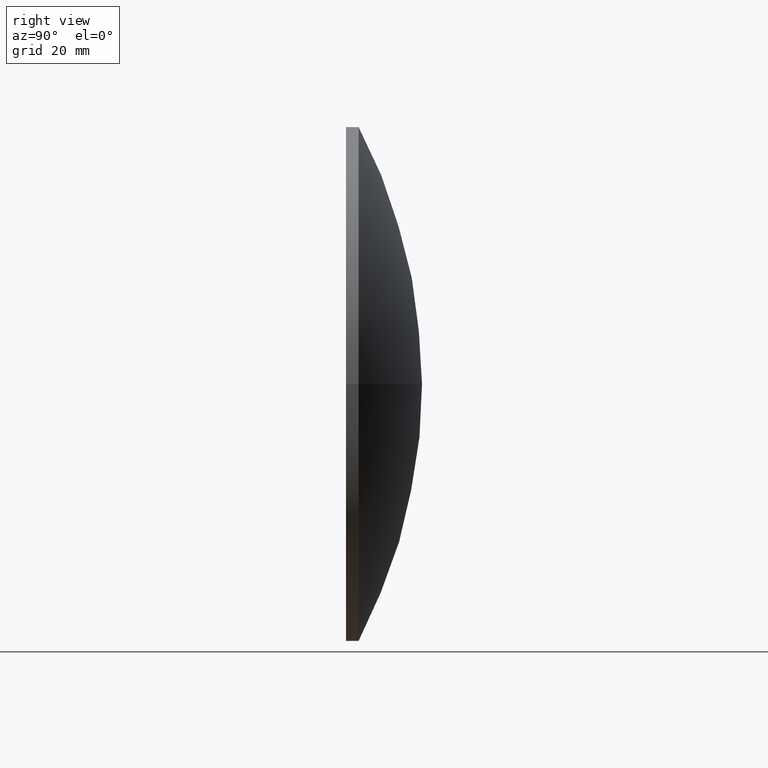
[diagram: clean part render]
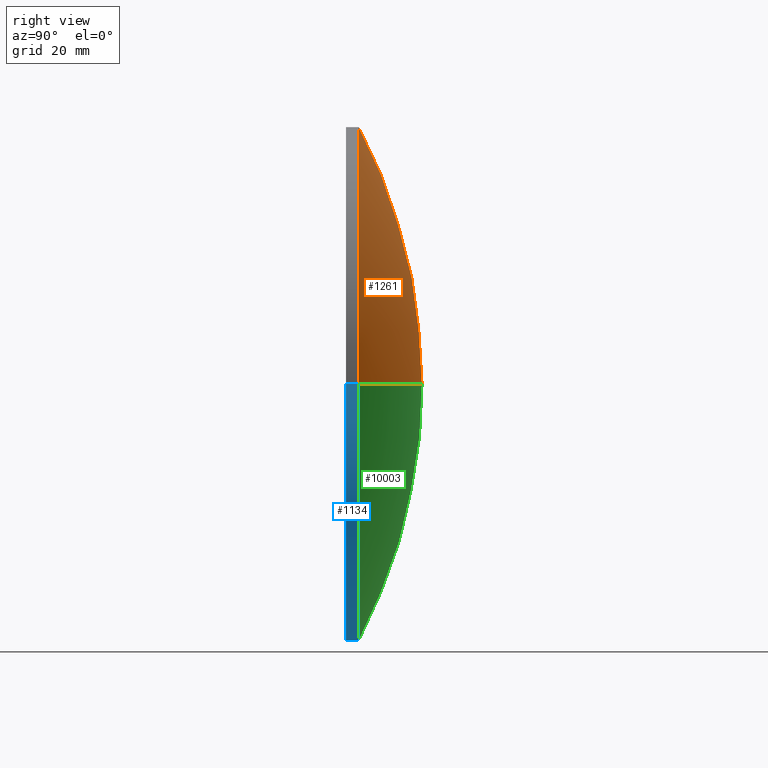
[diagram: same view with three faces highlighted in distinct colors, each labeled with its STEP entity id]
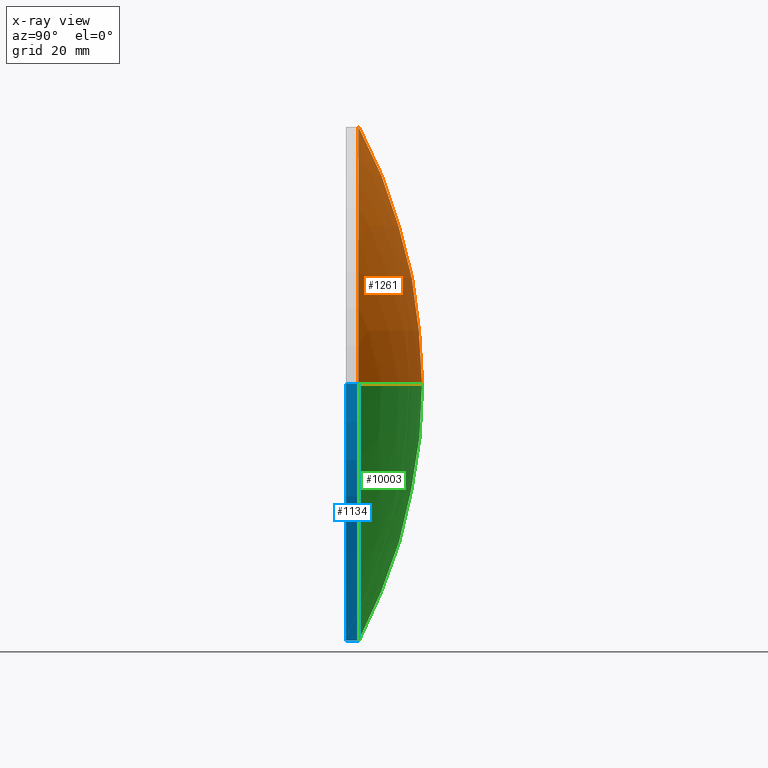
[diagram: x-ray of the same camera — body ghosted, the three highlighted faces saturated]
A machine part, right view with three faces highlighted in distinct colors.
The next image is the same camera in x-ray (body ghosted, the three faces saturated) — at least one of them is partly hidden behind the body in this view.
Their STEP definitions:

[orange] entity #1261 — the highlighted spherical surface has radius 109.476 mm.
#723 = CARTESIAN_POINT ( 'NONE',  ( 50.80000000000001100, 2.499999999999988000, 0.0000000000000000000 ) ) ;
#728 = CIRCLE ( 'NONE', #4524, 109.4755999999999600 ) ;
#1261 = ADVANCED_FACE ( 'NONE', ( #7993 ), #2685, .T. ) ;
#1782 = ORIENTED_EDGE ( 'NONE', *, *, #2581, .T. ) ;
#1829 = DIRECTION ( 'NONE',  ( -9.500868650831540200E-015, -1.000000000000000000, -0.0000000000000000000 ) ) ;
#1960 = CARTESIAN_POINT ( 'NONE',  ( 1.070568914854288400E-012, 14.99999999999998600, 0.0000000000000000000 ) ) ;
#2457 = VERTEX_POINT ( 'NONE', #1960 ) ;
#2581 = EDGE_CURVE ( 'NONE', #2457, #6805, #728, .T. ) ;
#2685 = SPHERICAL_SURFACE ( 'NONE', #6419, 109.4755999999999600 ) ;
#2809 = DIRECTION ( 'NONE',  ( -1.000000000000000000, 0.0000000000000000000, 0.0000000000000000000 ) ) ;
#3257 = CARTESIAN_POINT ( 'NONE',  ( -50.80000000000020300, 2.500000000000953500, 6.221205739668568700E-015 ) ) ;
#3649 = CARTESIAN_POINT ( 'NONE',  ( -9.500868650831084200E-014, 2.500000000000470700, 0.0000000000000000000 ) ) ;
#3850 = DIRECTION ( 'NONE',  ( 0.0000000000000000000, 0.0000000000000000000, -1.000000000000000000 ) ) ;
#4434 = EDGE_CURVE ( 'NONE', #10898, #6805, #7271, .T. ) ;
#4524 = AXIS2_PLACEMENT_3D ( 'NONE', #4971, #6863, #5008 ) ;
#4533 = DIRECTION ( 'NONE',  ( 1.000000000000000000, -9.507452670604999300E-015, 0.0000000000000000000 ) ) ;
#4575 = CARTESIAN_POINT ( 'NONE',  ( 2.375217162707880600E-014, -94.47559999999997200, 0.0000000000000000000 ) ) ;
#4780 = AXIS2_PLACEMENT_3D ( 'NONE', #8147, #3850, #2809 ) ;
#4971 = CARTESIAN_POINT ( 'NONE',  ( 2.375217162707880600E-014, -94.47559999999997200, 0.0000000000000000000 ) ) ;
#5008 = DIRECTION ( 'NONE',  ( 1.000000000000000000, 0.0000000000000000000, -1.224646799147353200E-016 ) ) ;
#5106 = EDGE_LOOP ( 'NONE', ( #10550, #1782, #6198 ) ) ;
#5193 = EDGE_CURVE ( 'NONE', #2457, #10898, #5419, .T. ) ;
#5419 = CIRCLE ( 'NONE', #4780, 109.4755999999999600 ) ;
#6198 = ORIENTED_EDGE ( 'NONE', *, *, #4434, .F. ) ;
#6316 = DIRECTION ( 'NONE',  ( -0.0000000000000000000, 0.0000000000000000000, 1.000000000000000000 ) ) ;
#6419 = AXIS2_PLACEMENT_3D ( 'NONE', #4575, #6316, #4533 ) ;
#6805 = VERTEX_POINT ( 'NONE', #3257 ) ;
#6863 = DIRECTION ( 'NONE',  ( 1.224646799147353200E-016, -1.163520838236027800E-030, 1.000000000000000000 ) ) ;
#7271 = CIRCLE ( 'NONE', #8453, 50.80000000000011100 ) ;
#7993 = FACE_OUTER_BOUND ( 'NONE', #5106, .T. ) ;
#8147 = CARTESIAN_POINT ( 'NONE',  ( 2.375217162707880600E-014, -94.47559999999997200, 0.0000000000000000000 ) ) ;
#8453 = AXIS2_PLACEMENT_3D ( 'NONE', #3649, #1829, #9968 ) ;
#9968 = DIRECTION ( 'NONE',  ( 1.000000000000000000, -9.501708802963493800E-015, 0.0000000000000000000 ) ) ;
#10550 = ORIENTED_EDGE ( 'NONE', *, *, #5193, .F. ) ;
#10898 = VERTEX_POINT ( 'NONE', #723 ) ;

[blue] entity #1134 — the highlighted cylindrical surface (partial cylindrical patch) has radius 50.8 mm, axis along (-0, -1, -0).
#110 = DIRECTION ( 'NONE',  ( -9.500868650831540200E-015, -1.000000000000000000, -0.0000000000000000000 ) ) ;
#402 = EDGE_CURVE ( 'NONE', #8448, #6951, #3946, .T. ) ;
#723 = CARTESIAN_POINT ( 'NONE',  ( 50.80000000000001100, 2.499999999999988000, 0.0000000000000000000 ) ) ;
#968 = AXIS2_PLACEMENT_3D ( 'NONE', #8071, #1061, #2856 ) ;
#1061 = DIRECTION ( 'NONE',  ( -9.500868650831540200E-015, -1.000000000000000000, -0.0000000000000000000 ) ) ;
#1134 = ADVANCED_FACE ( 'NONE', ( #6469 ), #1850, .T. ) ;
#1850 = CYLINDRICAL_SURFACE ( 'NONE', #968, 50.80000000000011800 ) ;
#1934 = ORIENTED_EDGE ( 'NONE', *, *, #5845, .T. ) ;
#2001 = DIRECTION ( 'NONE',  ( -9.500868650831540200E-015, -1.000000000000000000, -0.0000000000000000000 ) ) ;
#2638 = VECTOR ( 'NONE', #2001, 1000.000000000000000 ) ;
#2651 = VECTOR ( 'NONE', #7677, 1000.000000000000000 ) ;
#2856 = DIRECTION ( 'NONE',  ( 1.000000000000000000, -9.493171777983292200E-015, 0.0000000000000000000 ) ) ;
#3257 = CARTESIAN_POINT ( 'NONE',  ( -50.80000000000020300, 2.500000000000953500, 6.221205739668568700E-015 ) ) ;
#3343 = LINE ( 'NONE', #4537, #2638 ) ;
#3901 = DIRECTION ( 'NONE',  ( -9.500868650831540200E-015, -1.000000000000000000, -0.0000000000000000000 ) ) ;
#3946 = CIRCLE ( 'NONE', #6650, 50.80000000000012500 ) ;
#4054 = CARTESIAN_POINT ( 'NONE',  ( -50.80000000000023900, 9.666319772597724300E-013, 6.221205739668571900E-015 ) ) ;
#4537 = CARTESIAN_POINT ( 'NONE',  ( 50.80000000000011800, 12.49999999999950800, 0.0000000000000000000 ) ) ;
#4645 = EDGE_CURVE ( 'NONE', #6805, #8448, #5434, .T. ) ;
#4858 = CARTESIAN_POINT ( 'NONE',  ( -9.500868650831084200E-014, 2.500000000000470700, 0.0000000000000000000 ) ) ;
#5434 = LINE ( 'NONE', #6750, #2651 ) ;
#5440 = CARTESIAN_POINT ( 'NONE',  ( 50.80000000000000400, 1.343722335285802000E-015, 0.0000000000000000000 ) ) ;
#5594 = ORIENTED_EDGE ( 'NONE', *, *, #5999, .T. ) ;
#5845 = EDGE_CURVE ( 'NONE', #10898, #6951, #3343, .T. ) ;
#5999 = EDGE_CURVE ( 'NONE', #6805, #10898, #11311, .T. ) ;
#6469 = FACE_OUTER_BOUND ( 'NONE', #7744, .T. ) ;
#6650 = AXIS2_PLACEMENT_3D ( 'NONE', #9923, #110, #10783 ) ;
#6750 = CARTESIAN_POINT ( 'NONE',  ( -50.80000000000011800, 12.50000000000047300, 6.221205739668568700E-015 ) ) ;
#6805 = VERTEX_POINT ( 'NONE', #3257 ) ;
#6951 = VERTEX_POINT ( 'NONE', #5440 ) ;
#7075 = ORIENTED_EDGE ( 'NONE', *, *, #4645, .F. ) ;
#7677 = DIRECTION ( 'NONE',  ( -9.500868650831540200E-015, -1.000000000000000000, -0.0000000000000000000 ) ) ;
#7744 = EDGE_LOOP ( 'NONE', ( #7075, #5594, #1934, #7813 ) ) ;
#7813 = ORIENTED_EDGE ( 'NONE', *, *, #402, .F. ) ;
#8071 = CARTESIAN_POINT ( 'NONE',  ( 0.0000000000000000000, 12.49999999999999100, 0.0000000000000000000 ) ) ;
#8448 = VERTEX_POINT ( 'NONE', #4054 ) ;
#9186 = DIRECTION ( 'NONE',  ( 1.000000000000000000, -9.501708802963493800E-015, 0.0000000000000000000 ) ) ;
#9195 = AXIS2_PLACEMENT_3D ( 'NONE', #4858, #3901, #9186 ) ;
#9923 = CARTESIAN_POINT ( 'NONE',  ( -1.187608581353895600E-013, 4.839878497975291800E-013, 0.0000000000000000000 ) ) ;
#10783 = DIRECTION ( 'NONE',  ( 1.000000000000000000, -9.500868650831538600E-015, 0.0000000000000000000 ) ) ;
#10898 = VERTEX_POINT ( 'NONE', #723 ) ;
#11311 = CIRCLE ( 'NONE', #9195, 50.80000000000011100 ) ;

[green] entity #10003 — the highlighted spherical surface has radius 109.476 mm.
#723 = CARTESIAN_POINT ( 'NONE',  ( 50.80000000000001100, 2.499999999999988000, 0.0000000000000000000 ) ) ;
#728 = CIRCLE ( 'NONE', #4524, 109.4755999999999600 ) ;
#1486 = ORIENTED_EDGE ( 'NONE', *, *, #5999, .F. ) ;
#1557 = CARTESIAN_POINT ( 'NONE',  ( 2.375217162707880600E-014, -94.47559999999997200, 0.0000000000000000000 ) ) ;
#1960 = CARTESIAN_POINT ( 'NONE',  ( 1.070568914854288400E-012, 14.99999999999998600, 0.0000000000000000000 ) ) ;
#2457 = VERTEX_POINT ( 'NONE', #1960 ) ;
#2581 = EDGE_CURVE ( 'NONE', #2457, #6805, #728, .T. ) ;
#2727 = ORIENTED_EDGE ( 'NONE', *, *, #5193, .T. ) ;
#2802 = EDGE_LOOP ( 'NONE', ( #7837, #2727, #1486 ) ) ;
#2809 = DIRECTION ( 'NONE',  ( -1.000000000000000000, 0.0000000000000000000, 0.0000000000000000000 ) ) ;
#3044 = AXIS2_PLACEMENT_3D ( 'NONE', #1557, #4194, #7827 ) ;
#3257 = CARTESIAN_POINT ( 'NONE',  ( -50.80000000000020300, 2.500000000000953500, 6.221205739668568700E-015 ) ) ;
#3850 = DIRECTION ( 'NONE',  ( 0.0000000000000000000, 0.0000000000000000000, -1.000000000000000000 ) ) ;
#3901 = DIRECTION ( 'NONE',  ( -9.500868650831540200E-015, -1.000000000000000000, -0.0000000000000000000 ) ) ;
#4194 = DIRECTION ( 'NONE',  ( -0.0000000000000000000, 0.0000000000000000000, 1.000000000000000000 ) ) ;
#4524 = AXIS2_PLACEMENT_3D ( 'NONE', #4971, #6863, #5008 ) ;
#4780 = AXIS2_PLACEMENT_3D ( 'NONE', #8147, #3850, #2809 ) ;
#4858 = CARTESIAN_POINT ( 'NONE',  ( -9.500868650831084200E-014, 2.500000000000470700, 0.0000000000000000000 ) ) ;
#4971 = CARTESIAN_POINT ( 'NONE',  ( 2.375217162707880600E-014, -94.47559999999997200, 0.0000000000000000000 ) ) ;
#5008 = DIRECTION ( 'NONE',  ( 1.000000000000000000, 0.0000000000000000000, -1.224646799147353200E-016 ) ) ;
#5193 = EDGE_CURVE ( 'NONE', #2457, #10898, #5419, .T. ) ;
#5419 = CIRCLE ( 'NONE', #4780, 109.4755999999999600 ) ;
#5999 = EDGE_CURVE ( 'NONE', #6805, #10898, #11311, .T. ) ;
#6805 = VERTEX_POINT ( 'NONE', #3257 ) ;
#6863 = DIRECTION ( 'NONE',  ( 1.224646799147353200E-016, -1.163520838236027800E-030, 1.000000000000000000 ) ) ;
#7827 = DIRECTION ( 'NONE',  ( 1.000000000000000000, -9.507452670604999300E-015, 0.0000000000000000000 ) ) ;
#7834 = FACE_OUTER_BOUND ( 'NONE', #2802, .T. ) ;
#7837 = ORIENTED_EDGE ( 'NONE', *, *, #2581, .F. ) ;
#8147 = CARTESIAN_POINT ( 'NONE',  ( 2.375217162707880600E-014, -94.47559999999997200, 0.0000000000000000000 ) ) ;
#9186 = DIRECTION ( 'NONE',  ( 1.000000000000000000, -9.501708802963493800E-015, 0.0000000000000000000 ) ) ;
#9195 = AXIS2_PLACEMENT_3D ( 'NONE', #4858, #3901, #9186 ) ;
#10003 = ADVANCED_FACE ( 'NONE', ( #7834 ), #11068, .T. ) ;
#10898 = VERTEX_POINT ( 'NONE', #723 ) ;
#11068 = SPHERICAL_SURFACE ( 'NONE', #3044, 109.4755999999999600 ) ;
#11311 = CIRCLE ( 'NONE', #9195, 50.80000000000011100 ) ;